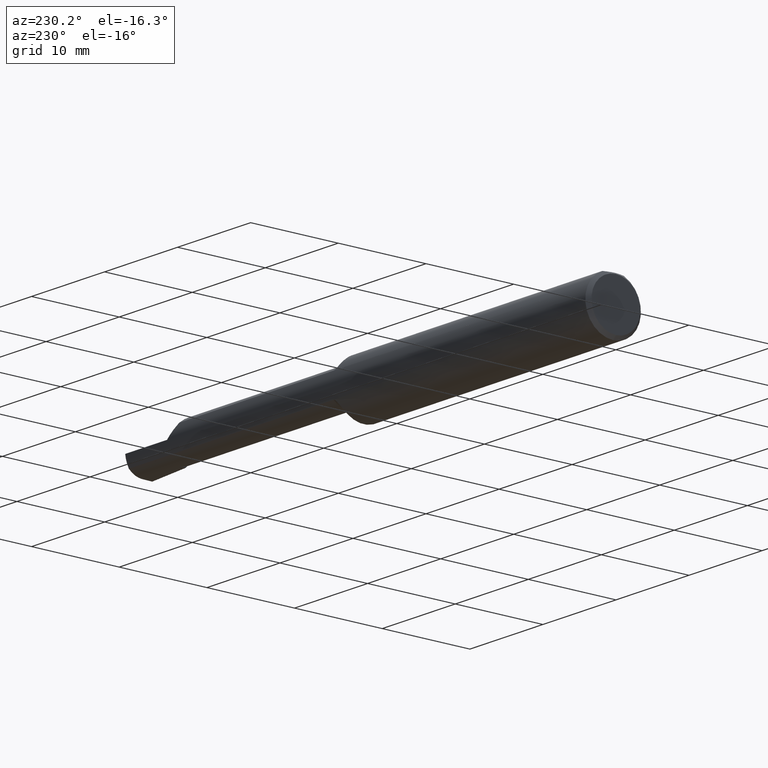
[diagram: clean part render]
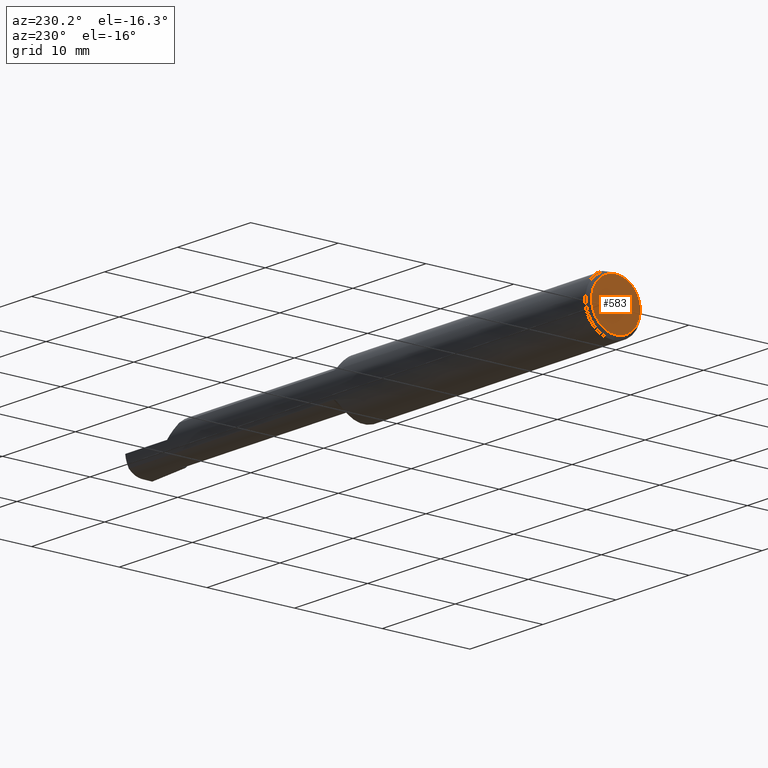
[diagram: same view with one face highlighted and labeled with its STEP entity id]
A machine part, auxiliary view. The second image highlights one B-rep face of the part: STEP entity #583.
In plain terms, the highlighted planar face has unit normal (1, 0, 0).
Its self-contained STEP definition (entity closure, byte-faithful):
#81 = CIRCLE ( 'NONE', #263, 0.1098499999999996424 ) ;
#125 = ORIENTED_EDGE ( 'NONE', *, *, #333, .T. ) ;
#133 = FACE_OUTER_BOUND ( 'NONE', #510, .T. ) ;
#186 = PLANE ( 'NONE',  #679 ) ;
#202 = CIRCLE ( 'NONE', #285, 0.1098499999999996424 ) ;
#214 = EDGE_CURVE ( 'NONE', #572, #248, #81, .T. ) ;
#230 = CARTESIAN_POINT ( 'NONE',  ( 0.000000000000000000, 0.000000000000000000, -0.1098499999999996424 ) ) ;
#231 = CARTESIAN_POINT ( 'NONE',  ( 0.000000000000000000, 0.000000000000000000, 0.000000000000000000 ) ) ;
#239 = DIRECTION ( 'NONE',  ( 1.000000000000000000, 0.000000000000000000, 0.000000000000000000 ) ) ;
#248 = VERTEX_POINT ( 'NONE', #490 ) ;
#263 = AXIS2_PLACEMENT_3D ( 'NONE', #641, #318, #692 ) ;
#285 = AXIS2_PLACEMENT_3D ( 'NONE', #231, #543, #648 ) ;
#287 = DIRECTION ( 'NONE',  ( 0.000000000000000000, 0.000000000000000000, -1.000000000000000000 ) ) ;
#296 = ORIENTED_EDGE ( 'NONE', *, *, #214, .T. ) ;
#318 = DIRECTION ( 'NONE',  ( -1.000000000000000000, -0.000000000000000000, -0.000000000000000000 ) ) ;
#333 = EDGE_CURVE ( 'NONE', #248, #572, #202, .T. ) ;
#490 = CARTESIAN_POINT ( 'NONE',  ( 0.000000000000000000, 1.437123018799416669E-17, 0.1098499999999996424 ) ) ;
#510 = EDGE_LOOP ( 'NONE', ( #296, #125 ) ) ;
#543 = DIRECTION ( 'NONE',  ( -1.000000000000000000, -0.000000000000000000, -0.000000000000000000 ) ) ;
#572 = VERTEX_POINT ( 'NONE', #230 ) ;
#583 = ADVANCED_FACE ( 'NONE', ( #133 ), #186, .F. ) ;
#641 = CARTESIAN_POINT ( 'NONE',  ( 0.000000000000000000, 0.000000000000000000, 0.000000000000000000 ) ) ;
#648 = DIRECTION ( 'NONE',  ( 0.000000000000000000, 0.000000000000000000, 1.000000000000000000 ) ) ;
#651 = CARTESIAN_POINT ( 'NONE',  ( 0.000000000000000000, 0.000000000000000000, 0.000000000000000000 ) ) ;
#679 = AXIS2_PLACEMENT_3D ( 'NONE', #651, #239, #287 ) ;
#692 = DIRECTION ( 'NONE',  ( 0.000000000000000000, 0.000000000000000000, 1.000000000000000000 ) ) ;